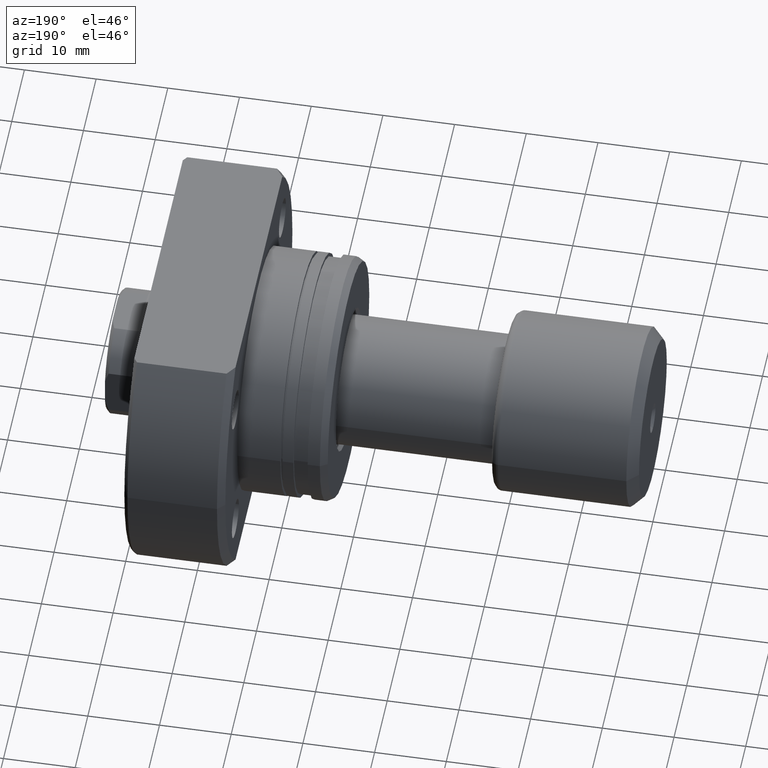
[diagram: clean part render]
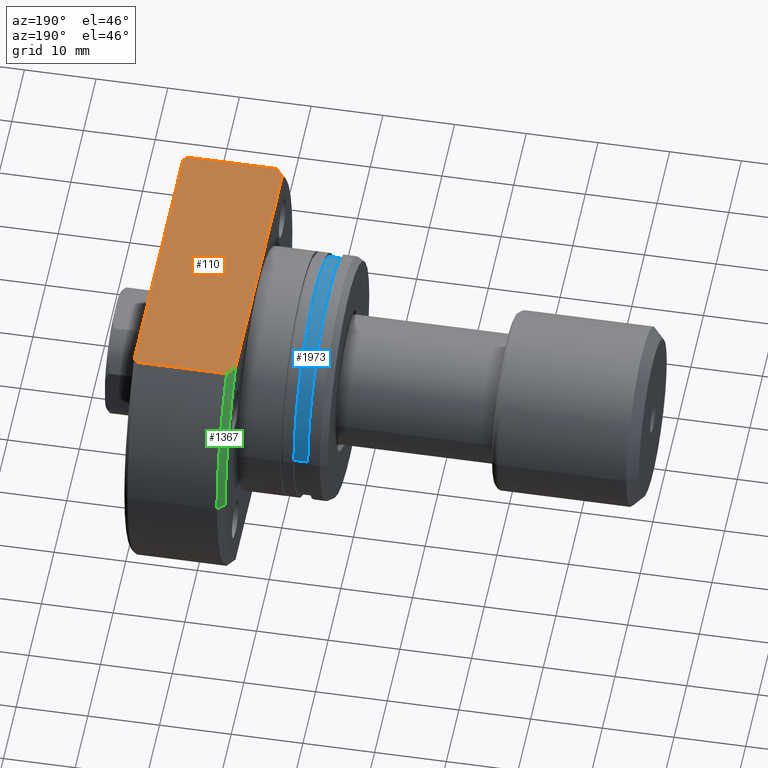
[diagram: same view with three faces highlighted in distinct colors, each labeled with its STEP entity id]
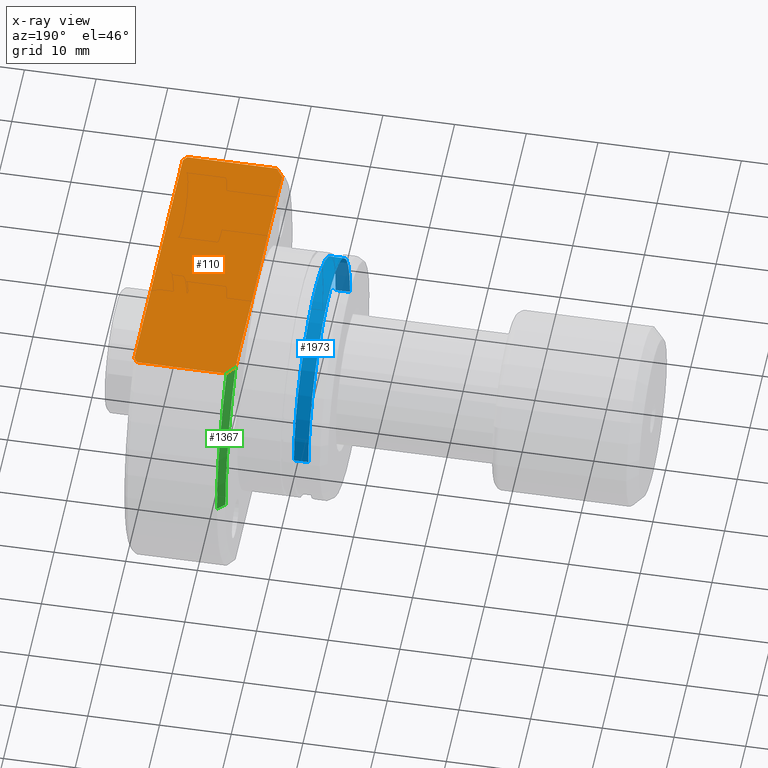
[diagram: x-ray of the same camera — body ghosted, the three highlighted faces saturated]
A machine part, auxiliary view with three faces highlighted in distinct colors.
The next image is the same camera in x-ray (body ghosted, the three faces saturated) — at least one of them is partly hidden behind the body in this view.
Their STEP definitions:

[orange] entity #110 — the highlighted planar face has unit normal (0, 0, 1).
#4 = VERTEX_POINT ( 'NONE', #5 ) ;
#5 = CARTESIAN_POINT ( 'NONE',  ( 26.00000000000007461, -19.88089535207091885, 19.00000000000001421 ) ) ;
#46 = ORIENTED_EDGE ( 'NONE', *, *, #2488, .F. ) ;
#85 = PLANE ( 'NONE',  #1843 ) ;
#110 = ADVANCED_FACE ( 'NONE', ( #1327 ), #85, .T. ) ;
#165 = EDGE_CURVE ( 'NONE', #4, #1720, #2687, .T. ) ;
#169 = B_SPLINE_CURVE_WITH_KNOTS ( 'NONE', 3,
 ( #431, #1001, #451, #1429 ),
 .UNSPECIFIED., .F., .F.,
 ( 4, 4 ),
 ( 0.07446973138748344545, 0.07533421896860403866 ),
 .UNSPECIFIED. ) ;
#183 = CARTESIAN_POINT ( 'NONE',  ( 26.50000000000000355, 19.18332609325086935, 19.00000000000000711 ) ) ;
#247 = CARTESIAN_POINT ( 'NONE',  ( 26.50000000000000355, -19.18332609325086224, 19.00000000000000711 ) ) ;
#289 = LINE ( 'NONE', #2233, #2274 ) ;
#294 = DIRECTION ( 'NONE',  ( 1.000000000000000000, -2.886466111666351885E-14, -0.000000000000000000 ) ) ;
#424 = CARTESIAN_POINT ( 'NONE',  ( 13.49999999999998757, 19.88089535207129188, 19.00000000000000355 ) ) ;
#431 = CARTESIAN_POINT ( 'NONE',  ( 26.50000000000000355, 19.18332609325086935, 19.00000000000000711 ) ) ;
#451 = CARTESIAN_POINT ( 'NONE',  ( 26.16766778152496187, 19.64897098899368899, 19.00000000000001066 ) ) ;
#452 = EDGE_CURVE ( 'NONE', #686, #1177, #1838, .T. ) ;
#462 = LINE ( 'NONE', #1450, #3205 ) ;
#473 = ORIENTED_EDGE ( 'NONE', *, *, #1964, .T. ) ;
#485 = VERTEX_POINT ( 'NONE', #3127 ) ;
#495 = VECTOR ( 'NONE', #935, 1000.000000000000000 ) ;
#536 = VERTEX_POINT ( 'NONE', #183 ) ;
#686 = VERTEX_POINT ( 'NONE', #3220 ) ;
#713 = DIRECTION ( 'NONE',  ( 1.000000000000000000, -2.886466111666351885E-14, -0.000000000000000000 ) ) ;
#732 = DIRECTION ( 'NONE',  ( -0.000000000000000000, 1.000000000000000000, 0.000000000000000000 ) ) ;
#769 = CARTESIAN_POINT ( 'NONE',  ( 12.50000000000000355, 18.47295320191106072, 19.00000000000001066 ) ) ;
#785 = LINE ( 'NONE', #3024, #2270 ) ;
#839 = CARTESIAN_POINT ( 'NONE',  ( 13.16251021117672160, -19.41406682004138773, 19.00000000000001066 ) ) ;
#935 = DIRECTION ( 'NONE',  ( 9.242617352055502386E-18, -1.000000000000000000, 0.000000000000000000 ) ) ;
#968 = LINE ( 'NONE', #1232, #495 ) ;
#976 = ORIENTED_EDGE ( 'NONE', *, *, #1977, .T. ) ;
#1001 = CARTESIAN_POINT ( 'NONE',  ( 26.33435831467464538, 19.41646217622441029, 19.00000000000001066 ) ) ;
#1079 = CARTESIAN_POINT ( 'NONE',  ( -2.151057110211240797E-13, 19.88089535207168623, 19.00000000000001066 ) ) ;
#1086 = ORIENTED_EDGE ( 'NONE', *, *, #452, .T. ) ;
#1123 = VERTEX_POINT ( 'NONE', #769 ) ;
#1177 = VERTEX_POINT ( 'NONE', #1188 ) ;
#1188 = CARTESIAN_POINT ( 'NONE',  ( 13.49999999999998757, -19.88089535207056002, 19.00000000000001421 ) ) ;
#1232 = CARTESIAN_POINT ( 'NONE',  ( 12.50000000000000355, -16.99999999999999645, 19.00000000000001066 ) ) ;
#1327 = FACE_OUTER_BOUND ( 'NONE', #2272, .T. ) ;
#1364 = CARTESIAN_POINT ( 'NONE',  ( 26.50000000000000355, -19.18332609325086224, 19.00000000000000711 ) ) ;
#1429 = CARTESIAN_POINT ( 'NONE',  ( 26.00000000000007461, 19.88089535207092950, 19.00000000000000355 ) ) ;
#1450 = CARTESIAN_POINT ( 'NONE',  ( -1.360023205165816762E-12, -19.88089535207016922, 19.00000000000001421 ) ) ;
#1455 = CARTESIAN_POINT ( 'NONE',  ( 13.16276636410033873, 19.41442114037127453, 19.00000000000001066 ) ) ;
#1609 = ORIENTED_EDGE ( 'NONE', *, *, #165, .T. ) ;
#1657 = ORIENTED_EDGE ( 'NONE', *, *, #2715, .T. ) ;
#1720 = VERTEX_POINT ( 'NONE', #1364 ) ;
#1780 = CARTESIAN_POINT ( 'NONE',  ( 26.00000000000007461, -19.88089535207091885, 19.00000000000001421 ) ) ;
#1838 = B_SPLINE_CURVE_WITH_KNOTS ( 'NONE', 3,
 ( #2327, #2537, #839, #1840 ),
 .UNSPECIFIED., .F., .F.,
 ( 4, 4 ),
 ( 0.07360185391654980314, 0.07534192973589427800 ),
 .UNSPECIFIED. ) ;
#1840 = CARTESIAN_POINT ( 'NONE',  ( 13.49999999999998757, -19.88089535207056002, 19.00000000000001421 ) ) ;
#1843 = AXIS2_PLACEMENT_3D ( 'NONE', #1079, #2089, #2929 ) ;
#1955 = EDGE_CURVE ( 'NONE', #1177, #4, #462, .T. ) ;
#1964 = EDGE_CURVE ( 'NONE', #1123, #686, #968, .T. ) ;
#1977 = EDGE_CURVE ( 'NONE', #536, #485, #169, .T. ) ;
#2010 = CARTESIAN_POINT ( 'NONE',  ( 26.33429591812845061, -19.41654999763447620, 19.00000000000001066 ) ) ;
#2089 = DIRECTION ( 'NONE',  ( 0.000000000000000000, 0.000000000000000000, 1.000000000000000000 ) ) ;
#2129 = CARTESIAN_POINT ( 'NONE',  ( 13.49999999999998757, 19.88089535207129188, 19.00000000000000355 ) ) ;
#2233 = CARTESIAN_POINT ( 'NONE',  ( 26.50000000000000355, 19.88089535207168623, 19.00000000000001066 ) ) ;
#2270 = VECTOR ( 'NONE', #294, 1000.000000000000000 ) ;
#2272 = EDGE_LOOP ( 'NONE', ( #1657, #473, #1086, #3121, #1609, #2335, #976, #46 ) ) ;
#2274 = VECTOR ( 'NONE', #732, 1000.000000000000000 ) ;
#2327 = CARTESIAN_POINT ( 'NONE',  ( 12.50000000000000355, -18.47295320191106072, 19.00000000000001066 ) ) ;
#2335 = ORIENTED_EDGE ( 'NONE', *, *, #2983, .T. ) ;
#2457 = B_SPLINE_CURVE_WITH_KNOTS ( 'NONE', 3,
 ( #424, #1455, #2915, #3150 ),
 .UNSPECIFIED., .F., .F.,
 ( 4, 4 ),
 ( 0.03128279945209438972, 0.03301205973984312758 ),
 .UNSPECIFIED. ) ;
#2488 = EDGE_CURVE ( 'NONE', #3053, #485, #785, .T. ) ;
#2537 = CARTESIAN_POINT ( 'NONE',  ( 12.82897297353833999, -18.94487470268462914, 19.00000000000001066 ) ) ;
#2687 = B_SPLINE_CURVE_WITH_KNOTS ( 'NONE', 3,
 ( #1780, #3223, #2010, #247 ),
 .UNSPECIFIED., .F., .F.,
 ( 4, 4 ),
 ( 0.03127512062948595295, 0.03213456893170307110 ),
 .UNSPECIFIED. ) ;
#2715 = EDGE_CURVE ( 'NONE', #3053, #1123, #2457, .T. ) ;
#2915 = CARTESIAN_POINT ( 'NONE',  ( 12.82923531929442262, 18.94525104546319128, 19.00000000000001066 ) ) ;
#2929 = DIRECTION ( 'NONE',  ( 1.000000000000000000, 0.000000000000000000, -0.000000000000000000 ) ) ;
#2983 = EDGE_CURVE ( 'NONE', #1720, #536, #289, .T. ) ;
#3024 = CARTESIAN_POINT ( 'NONE',  ( -2.151057110211240797E-13, 19.88089535207167913, 19.00000000000000355 ) ) ;
#3053 = VERTEX_POINT ( 'NONE', #2129 ) ;
#3121 = ORIENTED_EDGE ( 'NONE', *, *, #1955, .T. ) ;
#3127 = CARTESIAN_POINT ( 'NONE',  ( 26.00000000000007461, 19.88089535207092950, 19.00000000000000355 ) ) ;
#3150 = CARTESIAN_POINT ( 'NONE',  ( 12.50000000000000355, 18.47295320191106072, 19.00000000000001066 ) ) ;
#3205 = VECTOR ( 'NONE', #713, 1000.000000000000000 ) ;
#3220 = CARTESIAN_POINT ( 'NONE',  ( 12.50000000000000355, -18.47295320191106072, 19.00000000000001066 ) ) ;
#3223 = CARTESIAN_POINT ( 'NONE',  ( 26.16760613831981885, -19.64905625618670726, 19.00000000000001066 ) ) ;

[blue] entity #1973 — the highlighted cylindrical surface (partial cylindrical patch) has radius 16.5 mm, axis along (1, 0, 0).
#39 = VERTEX_POINT ( 'NONE', #1111 ) ;
#51 = ORIENTED_EDGE ( 'NONE', *, *, #604, .F. ) ;
#55 = EDGE_CURVE ( 'NONE', #2378, #39, #3107, .T. ) ;
#496 = CARTESIAN_POINT ( 'NONE',  ( 4.699999999998548894, -16.49999999999999645, 2.020667218593132706E-15 ) ) ;
#501 = AXIS2_PLACEMENT_3D ( 'NONE', #1574, #2102, #2559 ) ;
#573 = CARTESIAN_POINT ( 'NONE',  ( 4.699999999998548894, 4.344030155464744241E-17, 0.000000000000000000 ) ) ;
#604 = EDGE_CURVE ( 'NONE', #39, #1151, #3040, .T. ) ;
#638 = AXIS2_PLACEMENT_3D ( 'NONE', #573, #786, #2289 ) ;
#639 = CARTESIAN_POINT ( 'NONE',  ( 26.50000000000000711, -16.49999999999999289, 2.020667218593132311E-15 ) ) ;
#649 = AXIS2_PLACEMENT_3D ( 'NONE', #3222, #1683, #1478 ) ;
#786 = DIRECTION ( 'NONE',  ( 1.000000000000000000, 9.242617352055502386E-18, -0.000000000000000000 ) ) ;
#868 = DIRECTION ( 'NONE',  ( 1.000000000000000000, 9.242617352055502386E-18, -0.000000000000000000 ) ) ;
#910 = VERTEX_POINT ( 'NONE', #1664 ) ;
#926 = EDGE_CURVE ( 'NONE', #910, #1151, #2866, .T. ) ;
#1111 = CARTESIAN_POINT ( 'NONE',  ( 4.699999999998548894, 16.49999999999999645, 0.000000000000000000 ) ) ;
#1151 = VERTEX_POINT ( 'NONE', #496 ) ;
#1342 = CARTESIAN_POINT ( 'NONE',  ( 26.50000000000000711, 16.49999999999999289, 0.000000000000000000 ) ) ;
#1478 = DIRECTION ( 'NONE',  ( 0.000000000000000000, 1.000000000000000000, 0.000000000000000000 ) ) ;
#1574 = CARTESIAN_POINT ( 'NONE',  ( 2.699999999999782574, 2.495506685054785763E-17, 0.000000000000000000 ) ) ;
#1647 = DIRECTION ( 'NONE',  ( 1.000000000000000000, 9.242617352055502386E-18, -0.000000000000000000 ) ) ;
#1664 = CARTESIAN_POINT ( 'NONE',  ( 2.699999999999782574, -16.49999999999999289, 2.020667218593132311E-15 ) ) ;
#1683 = DIRECTION ( 'NONE',  ( 1.000000000000000000, 9.242617352055502386E-18, -0.000000000000000000 ) ) ;
#1698 = CYLINDRICAL_SURFACE ( 'NONE', #649, 16.49999999999999289 ) ;
#1795 = EDGE_LOOP ( 'NONE', ( #3098, #1996, #51, #2137 ) ) ;
#1973 = ADVANCED_FACE ( 'NONE', ( #2954 ), #1698, .T. ) ;
#1996 = ORIENTED_EDGE ( 'NONE', *, *, #926, .T. ) ;
#1999 = VECTOR ( 'NONE', #868, 1000.000000000000000 ) ;
#2102 = DIRECTION ( 'NONE',  ( 1.000000000000000000, 9.242617352055502386E-18, -0.000000000000000000 ) ) ;
#2137 = ORIENTED_EDGE ( 'NONE', *, *, #55, .F. ) ;
#2289 = DIRECTION ( 'NONE',  ( 0.000000000000000000, 1.000000000000000000, 0.000000000000000000 ) ) ;
#2378 = VERTEX_POINT ( 'NONE', #3172 ) ;
#2559 = DIRECTION ( 'NONE',  ( 0.000000000000000000, 1.000000000000000000, 0.000000000000000000 ) ) ;
#2664 = EDGE_CURVE ( 'NONE', #2378, #910, #2891, .T. ) ;
#2825 = VECTOR ( 'NONE', #1647, 1000.000000000000000 ) ;
#2866 = LINE ( 'NONE', #639, #2825 ) ;
#2891 = CIRCLE ( 'NONE', #501, 16.49999999999999289 ) ;
#2954 = FACE_OUTER_BOUND ( 'NONE', #1795, .T. ) ;
#3040 = CIRCLE ( 'NONE', #638, 16.49999999999999645 ) ;
#3098 = ORIENTED_EDGE ( 'NONE', *, *, #2664, .T. ) ;
#3107 = LINE ( 'NONE', #1342, #1999 ) ;
#3172 = CARTESIAN_POINT ( 'NONE',  ( 2.699999999999782574, 16.49999999999999289, 0.000000000000000000 ) ) ;
#3222 = CARTESIAN_POINT ( 'NONE',  ( 26.50000000000000711, 2.449293598294708880E-16, 0.000000000000000000 ) ) ;

[green] entity #1367 — the highlighted conical surface has half-angle 45 deg.
#63 = CARTESIAN_POINT ( 'NONE',  ( 13.49999999999999112, 27.49999999999991473, 0.000000000000000000 ) ) ;
#170 = AXIS2_PLACEMENT_3D ( 'NONE', #2875, #2896, #2172 ) ;
#424 = CARTESIAN_POINT ( 'NONE',  ( 13.49999999999998757, 19.88089535207129188, 19.00000000000000355 ) ) ;
#497 = DIRECTION ( 'NONE',  ( 0.7071067811865500152, 0.7071067811865450192, 0.000000000000000000 ) ) ;
#769 = CARTESIAN_POINT ( 'NONE',  ( 12.50000000000000355, 18.47295320191106072, 19.00000000000001066 ) ) ;
#799 = DIRECTION ( 'NONE',  ( 0.000000000000000000, 1.000000000000000000, 0.000000000000000000 ) ) ;
#820 = CARTESIAN_POINT ( 'NONE',  ( 12.50000000000000355, 1.155327169006938207E-16, 0.000000000000000000 ) ) ;
#1123 = VERTEX_POINT ( 'NONE', #769 ) ;
#1229 = CIRCLE ( 'NONE', #2731, 26.49999999999993250 ) ;
#1367 = ADVANCED_FACE ( 'NONE', ( #2953 ), #2369, .T. ) ;
#1381 = EDGE_LOOP ( 'NONE', ( #3149, #1891, #2020, #2178 ) ) ;
#1455 = CARTESIAN_POINT ( 'NONE',  ( 13.16276636410033873, 19.41442114037127453, 19.00000000000001066 ) ) ;
#1476 = DIRECTION ( 'NONE',  ( 0.000000000000000000, 1.000000000000000000, 0.000000000000000000 ) ) ;
#1542 = AXIS2_PLACEMENT_3D ( 'NONE', #3157, #2660, #1476 ) ;
#1556 = EDGE_CURVE ( 'NONE', #2897, #3053, #1594, .T. ) ;
#1594 = CIRCLE ( 'NONE', #170, 27.49999999999991473 ) ;
#1714 = CARTESIAN_POINT ( 'NONE',  ( 12.50000000000000355, 26.49999999999993250, 0.000000000000000000 ) ) ;
#1730 = LINE ( 'NONE', #1714, #2938 ) ;
#1879 = EDGE_CURVE ( 'NONE', #2243, #2897, #1730, .T. ) ;
#1891 = ORIENTED_EDGE ( 'NONE', *, *, #2464, .T. ) ;
#2020 = ORIENTED_EDGE ( 'NONE', *, *, #2715, .F. ) ;
#2038 = DIRECTION ( 'NONE',  ( 1.000000000000000000, 9.242617352055502386E-18, -0.000000000000000000 ) ) ;
#2129 = CARTESIAN_POINT ( 'NONE',  ( 13.49999999999998757, 19.88089535207129188, 19.00000000000000355 ) ) ;
#2172 = DIRECTION ( 'NONE',  ( 0.000000000000000000, 1.000000000000000000, 0.000000000000000000 ) ) ;
#2178 = ORIENTED_EDGE ( 'NONE', *, *, #1556, .F. ) ;
#2243 = VERTEX_POINT ( 'NONE', #3111 ) ;
#2369 = CONICAL_SURFACE ( 'NONE', #1542, 26.49999999999993250, 0.7853981633974447263 ) ;
#2457 = B_SPLINE_CURVE_WITH_KNOTS ( 'NONE', 3,
 ( #424, #1455, #2915, #3150 ),
 .UNSPECIFIED., .F., .F.,
 ( 4, 4 ),
 ( 0.03128279945209438972, 0.03301205973984312758 ),
 .UNSPECIFIED. ) ;
#2464 = EDGE_CURVE ( 'NONE', #2243, #1123, #1229, .T. ) ;
#2660 = DIRECTION ( 'NONE',  ( 1.000000000000000000, 9.242617352055502386E-18, -0.000000000000000000 ) ) ;
#2715 = EDGE_CURVE ( 'NONE', #3053, #1123, #2457, .T. ) ;
#2731 = AXIS2_PLACEMENT_3D ( 'NONE', #820, #2038, #799 ) ;
#2875 = CARTESIAN_POINT ( 'NONE',  ( 13.49999999999999112, 1.247753342527491952E-16, 0.000000000000000000 ) ) ;
#2896 = DIRECTION ( 'NONE',  ( 1.000000000000000000, 9.242617352055502386E-18, -0.000000000000000000 ) ) ;
#2897 = VERTEX_POINT ( 'NONE', #63 ) ;
#2915 = CARTESIAN_POINT ( 'NONE',  ( 12.82923531929442262, 18.94525104546319128, 19.00000000000001066 ) ) ;
#2938 = VECTOR ( 'NONE', #497, 1000.000000000000000 ) ;
#2953 = FACE_OUTER_BOUND ( 'NONE', #1381, .T. ) ;
#3053 = VERTEX_POINT ( 'NONE', #2129 ) ;
#3111 = CARTESIAN_POINT ( 'NONE',  ( 12.50000000000000355, 26.49999999999993250, 0.000000000000000000 ) ) ;
#3149 = ORIENTED_EDGE ( 'NONE', *, *, #1879, .F. ) ;
#3150 = CARTESIAN_POINT ( 'NONE',  ( 12.50000000000000355, 18.47295320191106072, 19.00000000000001066 ) ) ;
#3157 = CARTESIAN_POINT ( 'NONE',  ( 12.50000000000000355, 1.155327169006938207E-16, 0.000000000000000000 ) ) ;